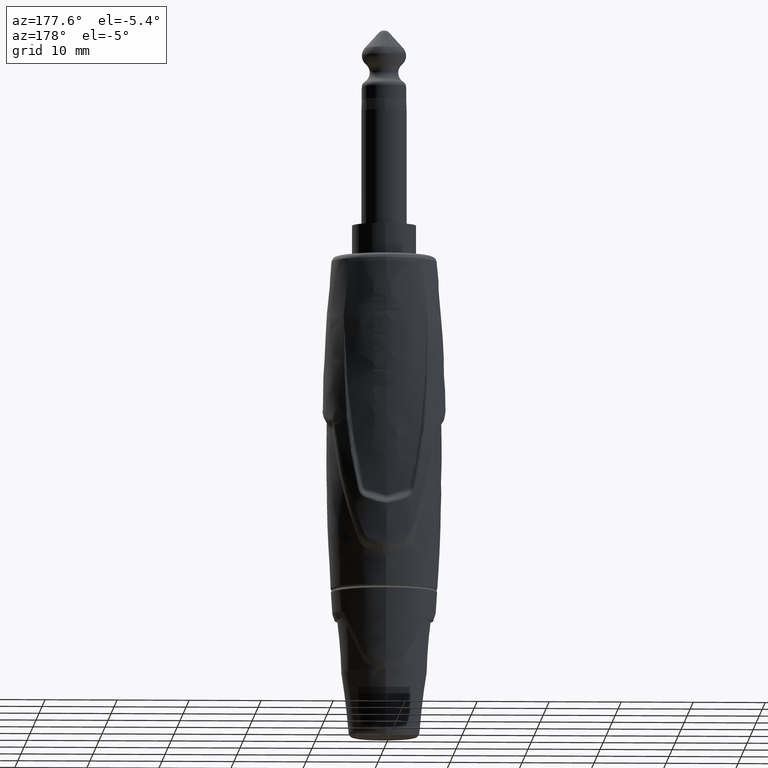
[diagram: clean part render]
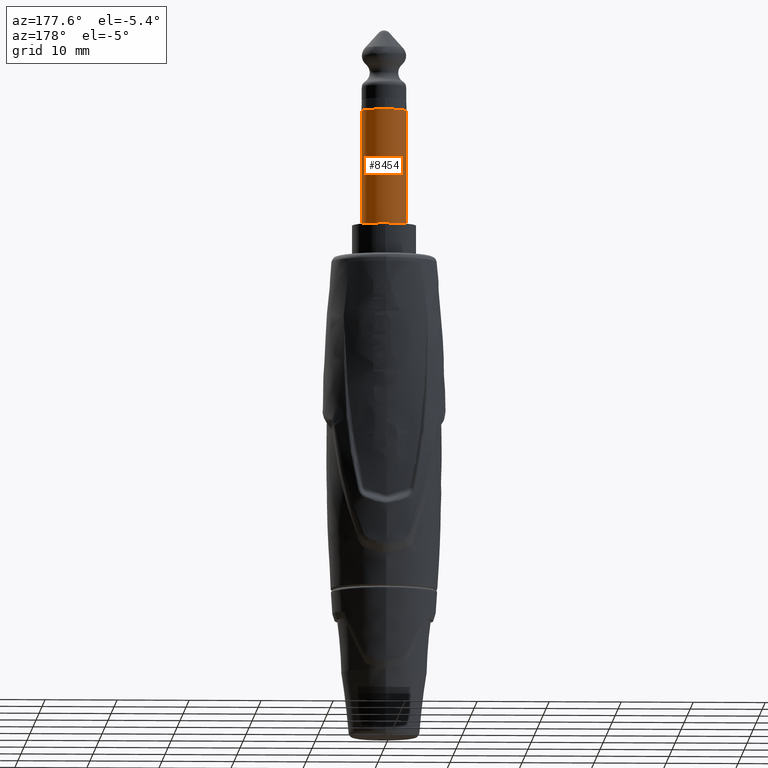
[diagram: same view with one face highlighted and labeled with its STEP entity id]
A machine part, auxiliary view. The second image highlights one B-rep face of the part: STEP entity #8454.
In plain terms, the highlighted cylindrical surface (edge-blend (fillet) strip) has radius 3.14 mm, axis along (0, 0, -1).
Its self-contained STEP definition (entity closure, byte-faithful):
#1=CARTESIAN_POINT('',(0.E0,0.E0,-1.5E0));
#2=DIRECTION('',(0.E0,0.E0,-1.E0));
#3=DIRECTION('',(0.E0,1.E0,0.E0));
#4=AXIS2_PLACEMENT_3D('',#1,#2,#3);
#20=CARTESIAN_POINT('',(0.E0,0.E0,-1.5E0));
#21=DIRECTION('',(0.E0,0.E0,-1.E0));
#22=DIRECTION('',(-1.E0,0.E0,0.E0));
#23=AXIS2_PLACEMENT_3D('',#20,#21,#22);
#34=DIRECTION('',(0.E0,0.E0,1.E0));
#35=VECTOR('',#34,1.6E1);
#36=CARTESIAN_POINT('',(-3.14E0,0.E0,-1.75E1));
#37=LINE('',#36,#35);
#38=DIRECTION('',(0.E0,0.E0,1.E0));
#39=VECTOR('',#38,1.6E1);
#40=CARTESIAN_POINT('',(3.14E0,0.E0,-1.75E1));
#41=LINE('',#40,#39);
#52=CARTESIAN_POINT('',(0.E0,0.E0,-1.75E1));
#53=DIRECTION('',(0.E0,0.E0,-1.E0));
#54=DIRECTION('',(-1.E0,0.E0,0.E0));
#55=AXIS2_PLACEMENT_3D('',#52,#53,#54);
#7672=CARTESIAN_POINT('',(0.E0,3.14E0,-1.5E0));
#7674=VERTEX_POINT('',#7672);
#7675=CARTESIAN_POINT('',(3.14E0,0.E0,-1.5E0));
#7676=VERTEX_POINT('',#7675);
#7677=CARTESIAN_POINT('',(-3.14E0,0.E0,-1.5E0));
#7678=VERTEX_POINT('',#7677);
#8333=CARTESIAN_POINT('',(-3.14E0,0.E0,-1.75E1));
#8334=CARTESIAN_POINT('',(3.14E0,0.E0,-1.75E1));
#8335=VERTEX_POINT('',#8333);
#8336=VERTEX_POINT('',#8334);
#8442=CARTESIAN_POINT('',(0.E0,0.E0,2.075E0));
#8443=DIRECTION('',(0.E0,0.E0,-1.E0));
#8444=DIRECTION('',(1.E0,0.E0,0.E0));
#8445=AXIS2_PLACEMENT_3D('',#8442,#8443,#8444);
#8446=CYLINDRICAL_SURFACE('',#8445,3.14E0);
#8447=ORIENTED_EDGE('',*,*,#8436,.T.);
#8448=ORIENTED_EDGE('',*,*,#8420,.T.);
#8449=ORIENTED_EDGE('',*,*,#8384,.F.);
#8450=ORIENTED_EDGE('',*,*,#8399,.F.);
#8451=ORIENTED_EDGE('',*,*,#8416,.F.);
#8452=EDGE_LOOP('',(#8447,#8448,#8449,#8450,#8451));
#8453=FACE_OUTER_BOUND('',#8452,.F.);
#8454=ADVANCED_FACE('',(#8453),#8446,.T.);
#5=CIRCLE('',#4,3.14E0);
#24=CIRCLE('',#23,3.14E0);
#56=CIRCLE('',#55,3.14E0);
#8384=EDGE_CURVE('',#7674,#7676,#5,.T.);
#8399=EDGE_CURVE('',#7678,#7674,#24,.T.);
#8416=EDGE_CURVE('',#8335,#7678,#37,.T.);
#8420=EDGE_CURVE('',#8336,#7676,#41,.T.);
#8436=EDGE_CURVE('',#8335,#8336,#56,.T.);